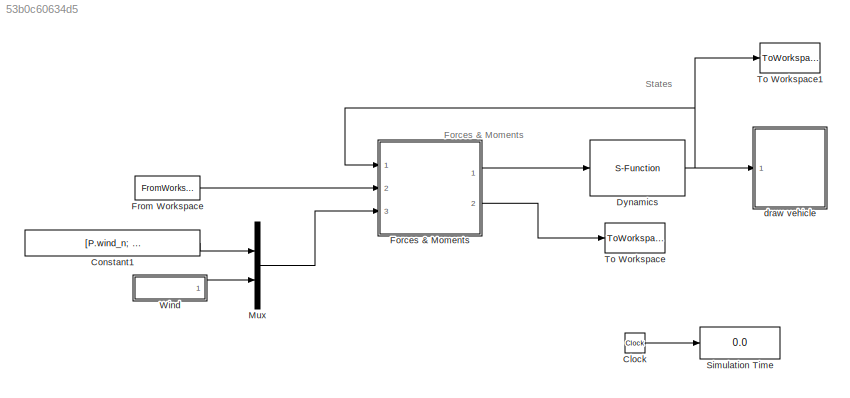
MODEL slx_53b0c60634d5
KIND model
CONFIG AbsTol = auto
CONFIG EnableMultiTasking = on
CONFIG FixedStep = auto
CONFIG InitFcn = param_chap4
CONFIG MaxStep = auto
CONFIG MinStep = auto
CONFIG RelTol = 1e-3
CONFIG SampleTimeConstraint = Unconstrained
CONFIG SolverName = ode45
CONFIG StartTime = 0.0
CONFIG StopTime = tsim
BLOCK [Clock] Clock
BLOCK [Constant] Constant1
  Value = [P.wind_n; P.wind_e; P.wind_d]
BLOCK [S-Function] Dynamics
  EnableBusSupport = off
  FunctionName = mav_dynamics
  Parameters = P
  Ports = [1, 1]
  SFcnIsStateOwnerBlock = off
  SFunctionDeploymentMode = off
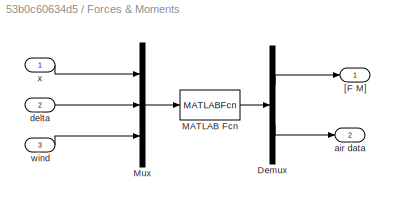
BLOCK [SubSystem] Forces & Moments
  Ports = [3, 2]
  RequestExecContextInheritance = off
BLOCK [Demux] Forces & Moments/Demux
  Outputs = [6;6]
  Ports = [1, 2]
BLOCK [MATLABFcn] Forces & Moments/MATLAB Fcn
  MATLABFcn = forces_moments(u(1:12),u(13:16),u(17:22),P)
  OutputDimensions = 12
  Ports = [1, 1]
BLOCK [Mux] Forces & Moments/Mux
  DisplayOption = bar
  Inputs = 3
  Ports = [3, 1]
BLOCK [Outport] Forces & Moments/[F M]
  VectorParamsAs1DForOutWhenUnconnected = off
BLOCK [Outport] Forces & Moments/air data
  Port = 2
  VectorParamsAs1DForOutWhenUnconnected = off
BLOCK [Inport] Forces & Moments/delta
  Port = 2
BLOCK [Inport] Forces & Moments/wind
  Port = 3
BLOCK [Inport] Forces & Moments/x
BLOCK [FromWorkspace] From Workspace
  VariableName = delta
BLOCK [Mux] Mux
  DisplayOption = bar
  Inputs = 2
  Ports = [2, 1]
BLOCK [Display] Simulation Time
  Decimation = 1
  Ports = [1]
BLOCK [ToWorkspace] To Workspace
  FixptAsFi = on
  MaxDataPoints = inf
  Ports = [1]
  SampleTime = -1
  SaveFormat = Timeseries
  VariableName = airdata
BLOCK [ToWorkspace] To Workspace1
  FixptAsFi = on
  MaxDataPoints = inf
  Ports = [1]
  SampleTime = -1
  SaveFormat = Timeseries
  VariableName = states
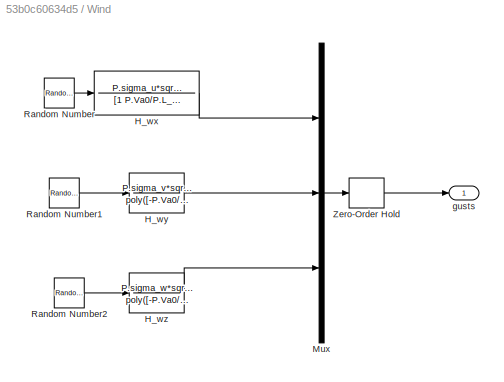
BLOCK [SubSystem] Wind
  Ports = [0, 1]
  RequestExecContextInheritance = off
BLOCK [TransferFcn] Wind/H_wx
  Denominator = [1 P.Va0/P.L_u]
  Numerator = P.sigma_u*sqrt(2*P.Va0/P.L_u)
BLOCK [TransferFcn] Wind/H_wy
  Denominator = poly([-P.Va0/P.L_v, -P.Va0/P.L_v])
  Numerator = P.sigma_v*sqrt(3*P.Va0/P.L_v)*[0, 1, P.Va0/sqrt(3)/P.L_v]
BLOCK [TransferFcn] Wind/H_wz
  Denominator = poly([-P.Va0/P.L_w, -P.Va0/P.L_w])
  Numerator = P.sigma_w*sqrt(3*P.Va0/P.L_w)*[0, 1, P.Va0/sqrt(3)/P.L_w]
BLOCK [Mux] Wind/Mux
  DisplayOption = bar
  Inputs = 3
  Ports = [3, 1]
BLOCK [RandomNumber] Wind/Random Number
  SampleTime = 0
BLOCK [RandomNumber] Wind/Random Number1
  SampleTime = 0
BLOCK [RandomNumber] Wind/Random Number2
  SampleTime = 0
BLOCK [ZeroOrderHold] Wind/Zero-Order Hold
  SampleTime = P.Ts
BLOCK [Outport] Wind/gusts
  VectorParamsAs1DForOutWhenUnconnected = off
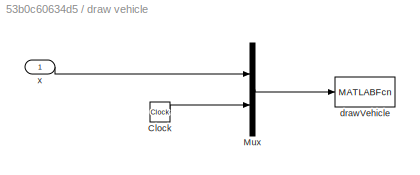
BLOCK [SubSystem] draw vehicle
  Ports = [1]
  RequestExecContextInheritance = off
BLOCK [Clock] draw vehicle/Clock
BLOCK [Mux] draw vehicle/Mux
  DisplayOption = bar
  Inputs = 2
  Ports = [2, 1]
BLOCK [MATLABFcn] draw vehicle/drawVehicle
  MATLABFcn = drawAircraft(u)
  OutputDimensions = 0
  Ports = [1]
  SampleTime = 0.1
BLOCK [Inport] draw vehicle/x
ANNOTATION (root): Forces & Moments
ANNOTATION (root): States
LINE Clock:1 -> Simulation Time:1
LINE Constant1:1 -> Mux:1
NET Dynamics:1 -> Forces & Moments:1, To Workspace1:1, draw vehicle:1
LINE Forces & Moments/Demux:1 -> Forces & Moments/[F M]:1
LINE Forces & Moments/Demux:2 -> Forces & Moments/air data:1
LINE Forces & Moments/MATLAB Fcn:1 -> Forces & Moments/Demux:1
LINE Forces & Moments/Mux:1 -> Forces & Moments/MATLAB Fcn:1
LINE Forces & Moments/delta:1 -> Forces & Moments/Mux:2
LINE Forces & Moments/wind:1 -> Forces & Moments/Mux:3
LINE Forces & Moments/x:1 -> Forces & Moments/Mux:1
LINE Forces & Moments:1 -> Dynamics:1
LINE Forces & Moments:2 -> To Workspace:1
LINE From Workspace:1 -> Forces & Moments:2
LINE Mux:1 -> Forces & Moments:3
LINE Wind/H_wx:1 -> Wind/Mux:1
LINE Wind/H_wy:1 -> Wind/Mux:2
LINE Wind/H_wz:1 -> Wind/Mux:3
LINE Wind/Mux:1 -> Wind/Zero-Order Hold:1
LINE Wind/Random Number1:1 -> Wind/H_wy:1
LINE Wind/Random Number2:1 -> Wind/H_wz:1
LINE Wind/Random Number:1 -> Wind/H_wx:1
LINE Wind/Zero-Order Hold:1 -> Wind/gusts:1
LINE Wind:1 -> Mux:2
LINE draw vehicle/Clock:1 -> draw vehicle/Mux:2
LINE draw vehicle/Mux:1 -> draw vehicle/drawVehicle:1
LINE draw vehicle/x:1 -> draw vehicle/Mux:1
note: NET lines group one-source signal fan-out (src -> all destinations, sorted); 1:1 wires keep LINE
